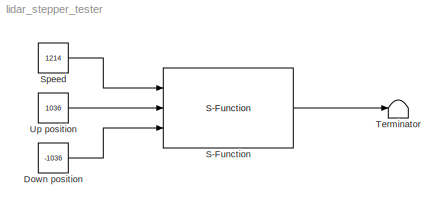
MODEL lidar_stepper_tester
KIND model
BLOCK [Constant] Down position
  OutDataType = fixdt(1, 16)
  OutScaling = 2^0
  Value = -1036
BLOCK [S-Function] S-Function
  EnableBusSupport = off
  FunctionName = lidar_stepper_test
  Ports = [3, 1]
BLOCK [Constant] Speed
  OutDataType = fixdt(1, 16)
  OutScaling = 2^0
  Value = 1214
BLOCK [Terminator] Terminator
BLOCK [Constant] Up position
  OutDataType = fixdt(1, 16)
  OutScaling = 2^0
  Value = 1036
LINE Down position:1 -> S-Function:3
LINE S-Function:1 -> Terminator:1
LINE Speed:1 -> S-Function:1
LINE Up position:1 -> S-Function:2
